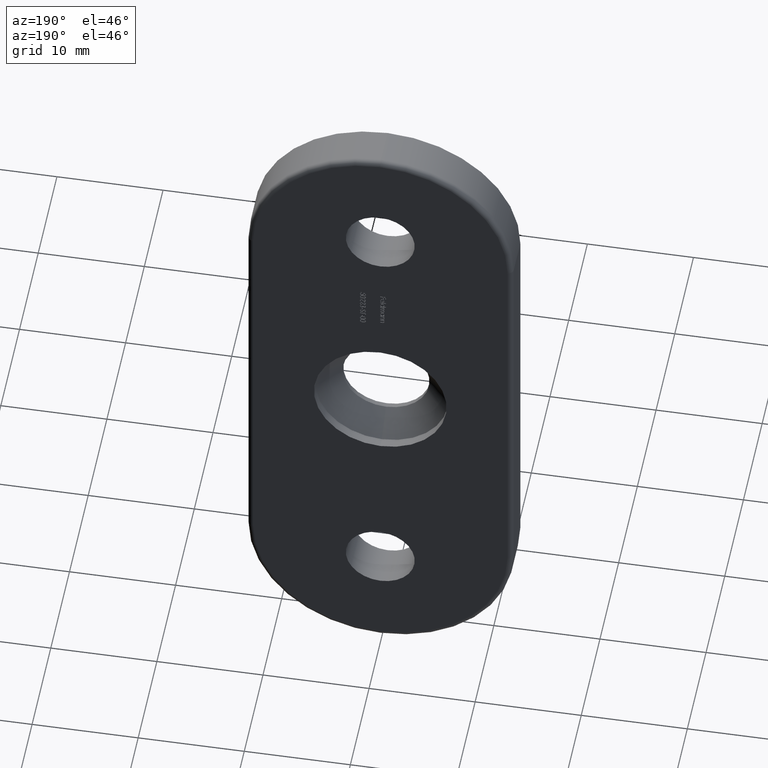
[diagram: clean part render]
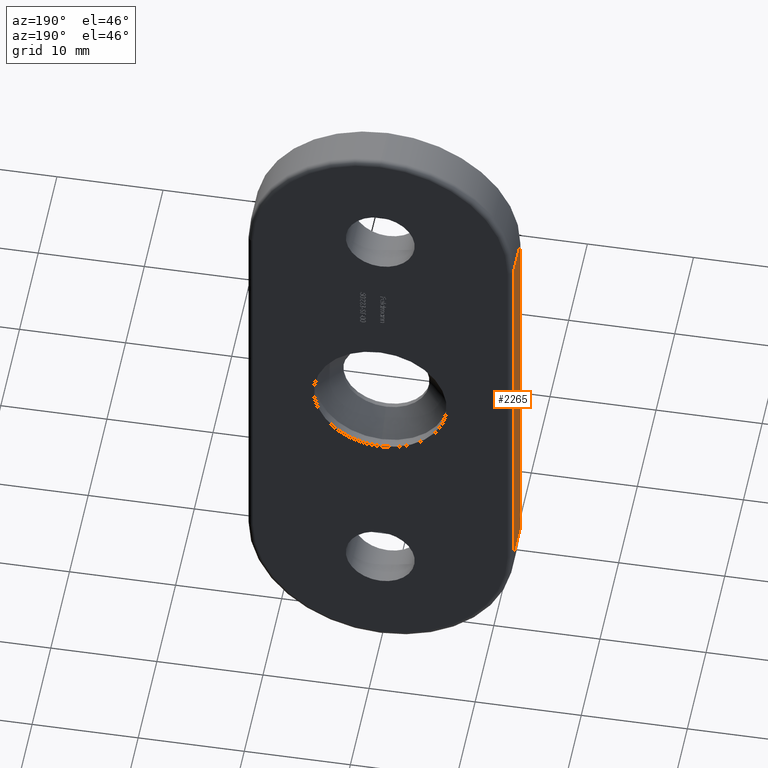
[diagram: same view with one face highlighted and labeled with its STEP entity id]
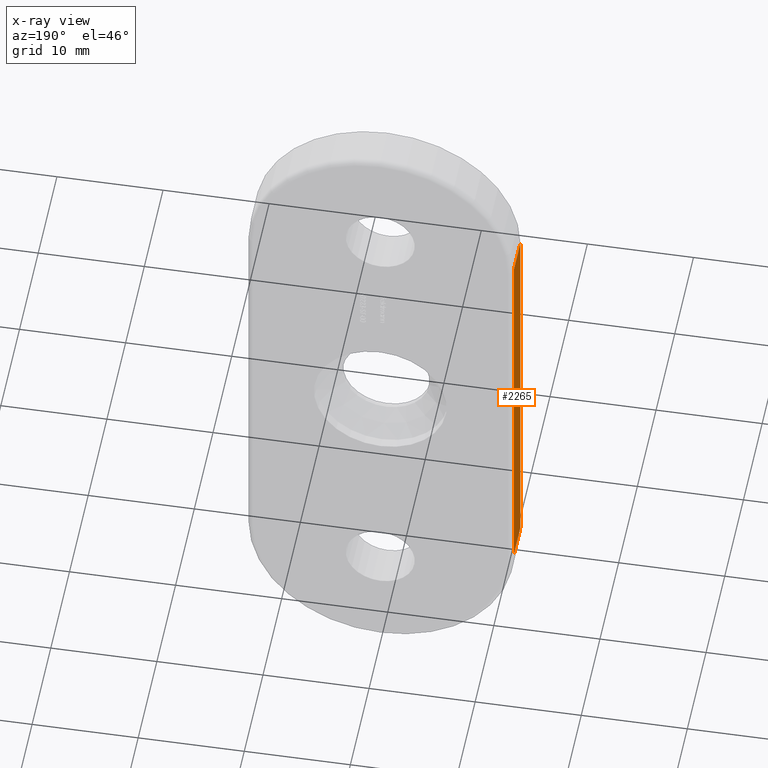
[diagram: x-ray of the same camera — body ghosted, the highlighted face saturated]
A machine part, auxiliary view. The second image highlights one B-rep face of the part: STEP entity #2265.
The next image is the same camera in x-ray: the body ghosted, the highlighted face saturated — about 0% of this face is hidden behind the body in this view.
In plain terms, the highlighted planar face has unit normal (1, 0, -0).
Its self-contained STEP definition (entity closure, byte-faithful):
#257 = VECTOR ( 'NONE', #7259, 1000.000000000000000 ) ;
#452 = CARTESIAN_POINT ( 'NONE',  ( -12.50000000000000000, 0.000000000000000000, 31.50000000000000000 ) ) ;
#1221 = VECTOR ( 'NONE', #6426, 1000.000000000000000 ) ;
#1602 = VERTEX_POINT ( 'NONE', #4231 ) ;
#1996 = LINE ( 'NONE', #452, #7453 ) ;
#2265 = ADVANCED_FACE ( 'NONE', ( #14809 ), #5384, .F. ) ;
#2525 = ORIENTED_EDGE ( 'NONE', *, *, #11741, .F. ) ;
#3009 = ORIENTED_EDGE ( 'NONE', *, *, #11833, .T. ) ;
#3312 = ORIENTED_EDGE ( 'NONE', *, *, #14942, .T. ) ;
#3702 = CARTESIAN_POINT ( 'NONE',  ( -12.50000000000000000, 4.000000000000000000, -19.00000000000000355 ) ) ;
#3876 = VECTOR ( 'NONE', #6876, 1000.000000000000000 ) ;
#4231 = CARTESIAN_POINT ( 'NONE',  ( -12.50000000000000000, 0.000000000000000000, 19.00000000000000000 ) ) ;
#4591 = CARTESIAN_POINT ( 'NONE',  ( -12.50000000000000000, 3.500000000000000000, 31.50000000000000000 ) ) ;
#4751 = CARTESIAN_POINT ( 'NONE',  ( -12.50000000000000000, 0.000000000000000000, -19.00000000000000355 ) ) ;
#5082 = EDGE_CURVE ( 'NONE', #9148, #11632, #9130, .T. ) ;
#5384 = PLANE ( 'NONE',  #10293 ) ;
#6426 = DIRECTION ( 'NONE',  ( -0.000000000000000000, 1.000000000000000000, -0.000000000000000000 ) ) ;
#6551 = DIRECTION ( 'NONE',  ( -0.000000000000000000, 0.000000000000000000, -1.000000000000000000 ) ) ;
#6876 = DIRECTION ( 'NONE',  ( 0.000000000000000000, 0.000000000000000000, -1.000000000000000000 ) ) ;
#7259 = DIRECTION ( 'NONE',  ( 0.000000000000000000, -1.000000000000000000, 0.000000000000000000 ) ) ;
#7453 = VECTOR ( 'NONE', #8600, 1000.000000000000000 ) ;
#7925 = CARTESIAN_POINT ( 'NONE',  ( -12.50000000000000000, 3.500000000000000000, 19.00000000000000000 ) ) ;
#8600 = DIRECTION ( 'NONE',  ( -0.000000000000000000, -0.000000000000000000, -1.000000000000000000 ) ) ;
#9130 = LINE ( 'NONE', #4591, #3876 ) ;
#9148 = VERTEX_POINT ( 'NONE', #7925 ) ;
#10159 = ORIENTED_EDGE ( 'NONE', *, *, #5082, .T. ) ;
#10293 = AXIS2_PLACEMENT_3D ( 'NONE', #13408, #11134, #6551 ) ;
#10439 = LINE ( 'NONE', #12221, #1221 ) ;
#10970 = LINE ( 'NONE', #3702, #257 ) ;
#11134 = DIRECTION ( 'NONE',  ( 1.000000000000000000, 0.000000000000000000, -0.000000000000000000 ) ) ;
#11632 = VERTEX_POINT ( 'NONE', #14068 ) ;
#11741 = EDGE_CURVE ( 'NONE', #1602, #13308, #1996, .T. ) ;
#11833 = EDGE_CURVE ( 'NONE', #1602, #9148, #10439, .T. ) ;
#12221 = CARTESIAN_POINT ( 'NONE',  ( -12.50000000000000000, 4.000000000000000000, 19.00000000000000000 ) ) ;
#13308 = VERTEX_POINT ( 'NONE', #4751 ) ;
#13408 = CARTESIAN_POINT ( 'NONE',  ( -12.50000000000000000, 4.000000000000000000, 31.50000000000000000 ) ) ;
#14068 = CARTESIAN_POINT ( 'NONE',  ( -12.50000000000000000, 3.500000000000000000, -19.00000000000000355 ) ) ;
#14158 = EDGE_LOOP ( 'NONE', ( #3009, #10159, #3312, #2525 ) ) ;
#14809 = FACE_OUTER_BOUND ( 'NONE', #14158, .T. ) ;
#14942 = EDGE_CURVE ( 'NONE', #11632, #13308, #10970, .T. ) ;